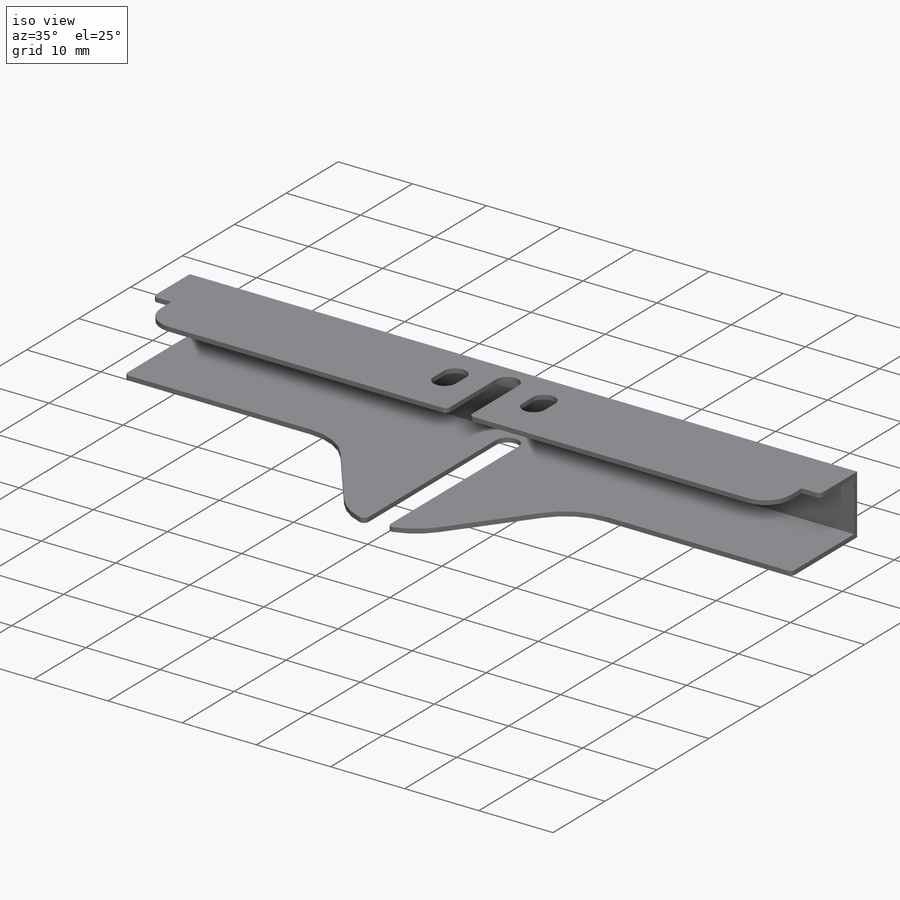
[diagram: iso view]
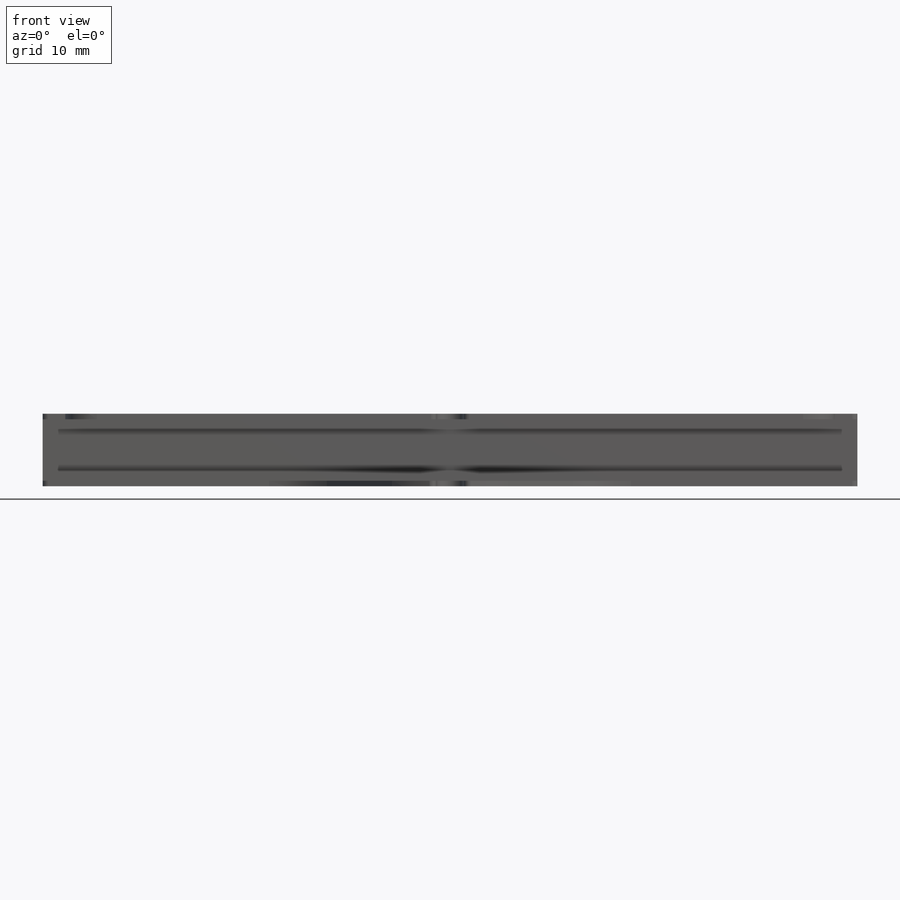
[diagram: front view]
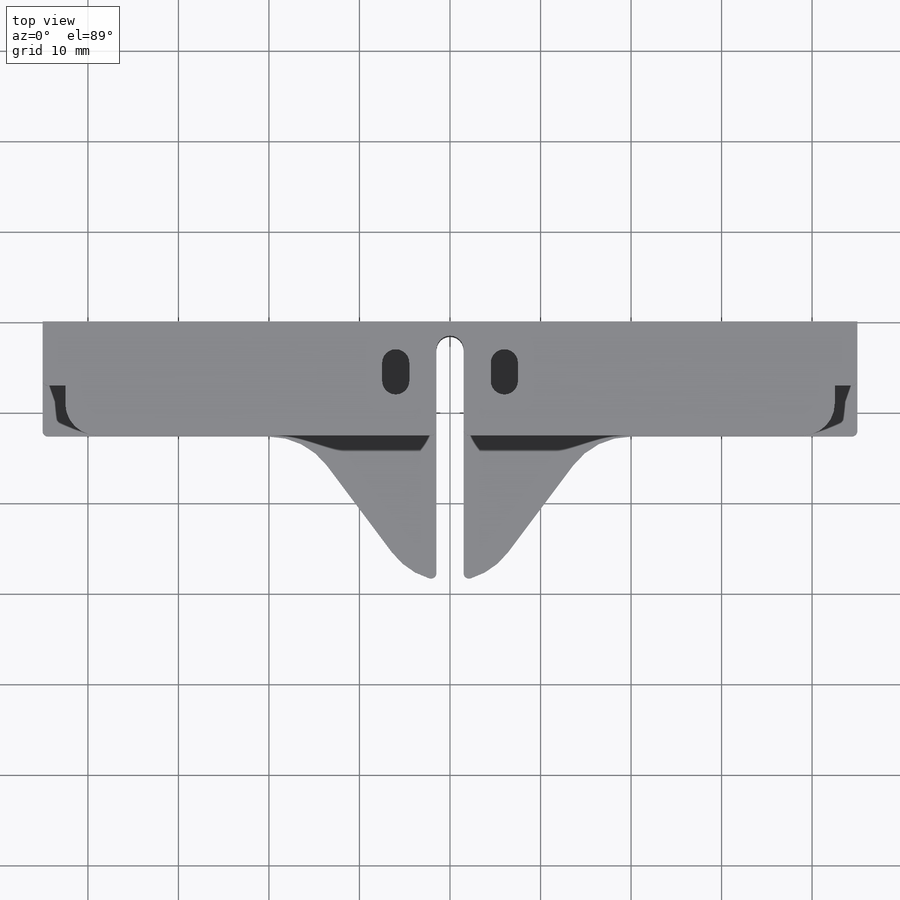
[diagram: top view]
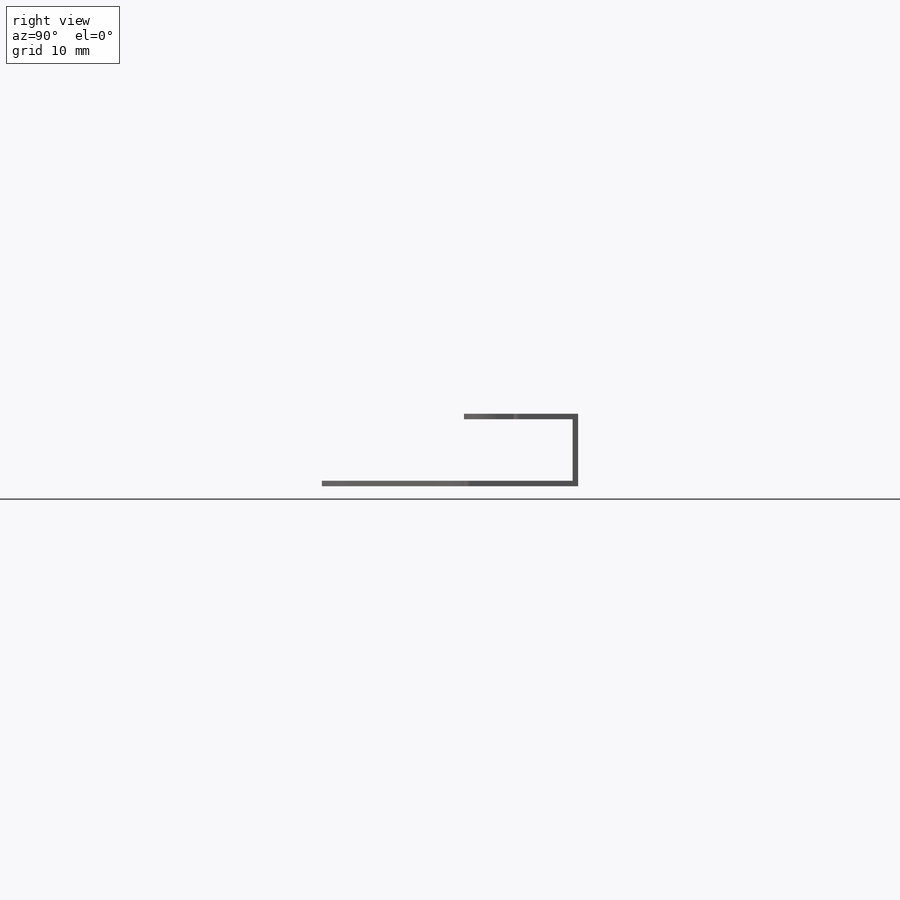
[diagram: right view]
SOLIDWORKS PART (.sldprt)
format: sldprt  version: not decoded by parser v0  size: 382,976 bytes
history: native  units: mm
features: sketch x10, cut_extrude x4, extrude x2, mirror x2, sheet_metal_op x2, material x1, fillet x1 + 1 further entry (+13 scaffold rows collapsed; 1 parser-record rows omitted)
feature tree (37):
  scaffold x13  (default folders/planes/origin — collapsed)
  material  "Material <not specified>"
  sketch  "Sketch1"  dims[D1=90.0mm D2=8.0mm]
  extrude  "Boss-Extrude1"  Depth=12.6mm
  sketch  "Sketch2"  dims[D1=0.6mm D2=0.6mm]
  cut_extrude  "Cut-Extrude1"  Depth=0.6mm
  sketch  "Sketch8"  dims[D1=8.0mm D2=16.0mm D3=40.0mm]
  extrude  "Boss-Extrude2"  [1 undecoded]
  sketch  "Sketch4"  dims[D2=3.0mm D1=3.1mm]
  cut_extrude  "Cut-Extrude2"  [1 undecoded]
  sketch  "Sketch6"  dims[D3=3.5mm D1=4.0mm D2=42.5mm]
  cut_extrude  "Cut-Extrude4"  [1 undecoded]
  mirror  "Mirror1"
  sketch  "Sketch7"  dims[D1=1.5mm D2=2.0mm D3=6.0mm D4=2.5mm]
  cut_extrude  "Cut-Extrude5"  [1 undecoded]
  mirror  "Mirror2"
  fillet  "Fillet1"  Radius=0.6mm SharpBend2=0
  sketch  "Bend-Lines1"
  sketch  "Bounding-Box1"
  sheet_metal_op  "Sheet-Metal(9)"
  "Flat-Pattern(9)"
  sketch  "Bend-Lines2"
  sketch  "Bounding-Box2"
  sheet_metal_op  "Flatten-<SharpBend2>1"
  parser-record x1  (decoder bookkeeping rows leaked as tree rows — omitted from the tree; the rows remain in map.json)
decode coverage: 9 of 21 modeling features carry decoded parameters; 1 rows unclassified (native names shown)
note: 4 parameter values undecoded
summary: no parameter record found for 4 features
note: suppression state not decoded; provenance and decode notes live in map.json
